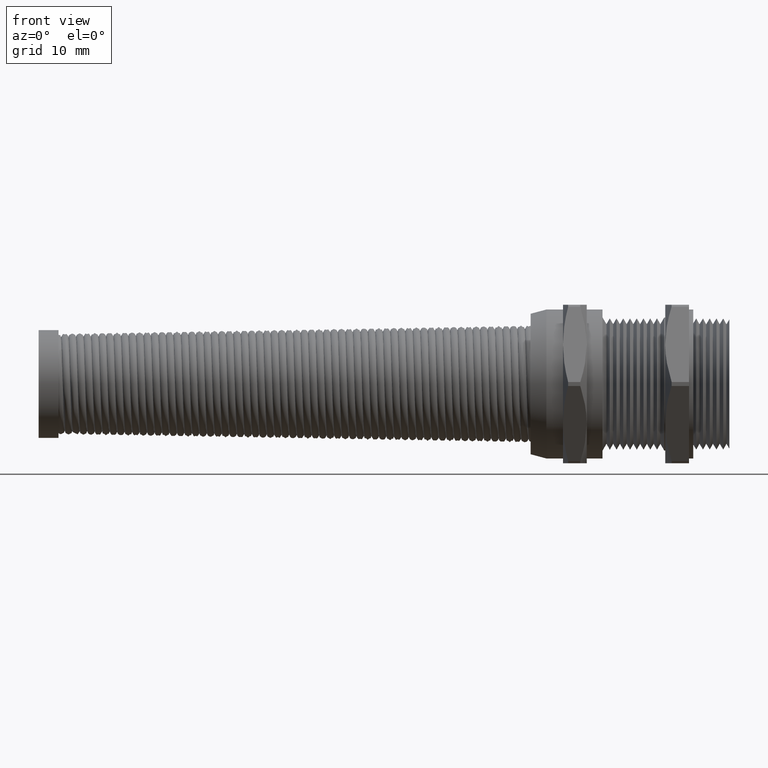
[diagram: clean part render]
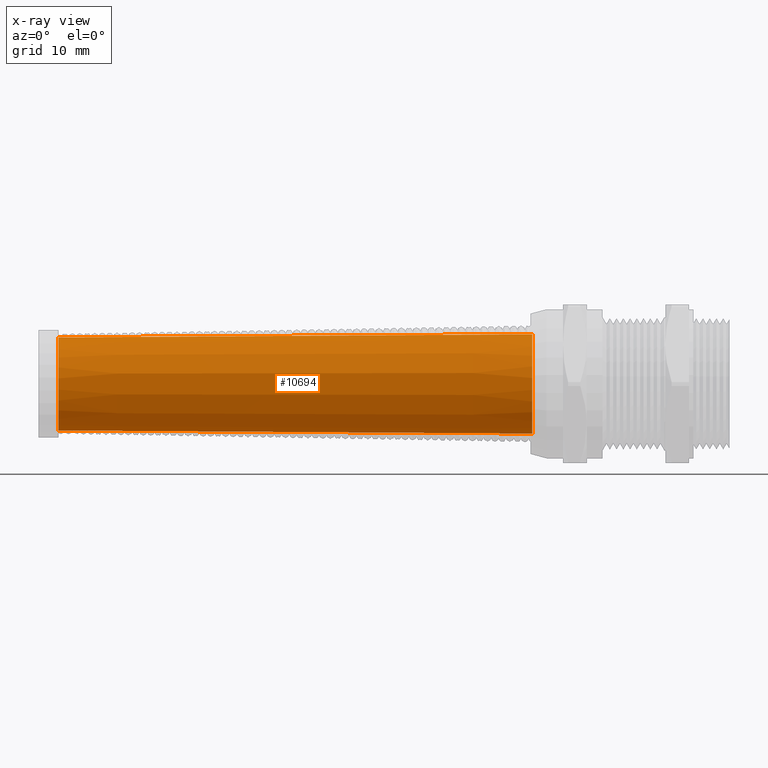
[diagram: x-ray — body ghosted, one internal face saturated and labeled with its STEP entity id]
A machine part, front view, then the same camera in x-ray: the body is ghosted and one INTERNAL B-rep face — a face not visible from any outside direction — is saturated and labeled: STEP entity #10694.
In plain terms, the highlighted conical surface has half-angle 0.38 deg.
Its self-contained STEP definition (entity closure, byte-faithful):
#8403 = DIRECTION ( 'NONE',  ( 0.9999780067029093700, 8.122105606785352400E-019, 0.006632202535817085400 ) ) ;
#8404 = VECTOR ( 'NONE', #8403, 39.37007874015748900 ) ;
#8405 = CARTESIAN_POINT ( 'NONE',  ( -0.5799999999999998500, 3.608911652407331300E-017, 0.2946899999999996700 ) ) ;
#8406 = LINE ( 'NONE', #8405, #8404 ) ;
#8407 = CARTESIAN_POINT ( 'NONE',  ( -3.391909212598425100, 3.494716022961841500E-017, 0.2760404384243686500 ) ) ;
#8408 = CARTESIAN_POINT ( 'NONE',  ( -3.391909212598425100, 0.0000000000000000000, -0.2760404384243686500 ) ) ;
#8415 = CONICAL_SURFACE ( 'NONE', #8479, 0.2946899999999996700, 0.006632251157578404800 ) ;
#8416 = FACE_OUTER_BOUND ( 'NONE', #10695, .T. ) ;
#8476 = DIRECTION ( 'NONE',  ( 0.0000000000000000000, 0.0000000000000000000, -1.000000000000000000 ) ) ;
#8477 = DIRECTION ( 'NONE',  ( 1.000000000000000000, 0.0000000000000000000, 0.0000000000000000000 ) ) ;
#8478 = CARTESIAN_POINT ( 'NONE',  ( -0.5799999999999998500, 0.0000000000000000000, 0.0000000000000000000 ) ) ;
#8479 = AXIS2_PLACEMENT_3D ( 'NONE', #8478, #8477, #8476 ) ;
#8482 = DIRECTION ( 'NONE',  ( 0.0000000000000000000, 0.0000000000000000000, -1.000000000000000000 ) ) ;
#8483 = DIRECTION ( 'NONE',  ( 1.000000000000000000, 0.0000000000000000000, 0.0000000000000000000 ) ) ;
#8484 = CARTESIAN_POINT ( 'NONE',  ( -0.5799999999999998500, 0.0000000000000000000, 0.0000000000000000000 ) ) ;
#8485 = AXIS2_PLACEMENT_3D ( 'NONE', #8484, #8483, #8482 ) ;
#8486 = CIRCLE ( 'NONE', #8485, 0.2946899999999996700 ) ;
#10551 = EDGE_CURVE ( 'NONE', #10661, #10660, #11946, .T. ) ;
#10588 = VERTEX_POINT ( 'NONE', #12002 ) ;
#10612 = VERTEX_POINT ( 'NONE', #19844 ) ;
#10614 = EDGE_CURVE ( 'NONE', #10660, #10612, #19843, .T. ) ;
#10660 = VERTEX_POINT ( 'NONE', #8408 ) ;
#10661 = VERTEX_POINT ( 'NONE', #8407 ) ;
#10663 = EDGE_CURVE ( 'NONE', #10661, #10588, #8406, .T. ) ;
#10694 = ADVANCED_FACE ( 'NONE', ( #8416 ), #8415, .T. ) ;
#10695 = EDGE_LOOP ( 'NONE', ( #10696, #10735, #10726, #10727 ) ) ;
#10696 = ORIENTED_EDGE ( 'NONE', *, *, #10663, .F. ) ;
#10726 = ORIENTED_EDGE ( 'NONE', *, *, #10614, .T. ) ;
#10727 = ORIENTED_EDGE ( 'NONE', *, *, #10740, .F. ) ;
#10735 = ORIENTED_EDGE ( 'NONE', *, *, #10551, .T. ) ;
#10740 = EDGE_CURVE ( 'NONE', #10588, #10612, #8486, .T. ) ;
#11942 = DIRECTION ( 'NONE',  ( 0.0000000000000000000, 0.0000000000000000000, 1.000000000000000000 ) ) ;
#11943 = DIRECTION ( 'NONE',  ( 1.000000000000000000, 0.0000000000000000000, 0.0000000000000000000 ) ) ;
#11944 = CARTESIAN_POINT ( 'NONE',  ( -3.391909212598425100, 0.0000000000000000000, 0.0000000000000000000 ) ) ;
#11945 = AXIS2_PLACEMENT_3D ( 'NONE', #11944, #11943, #11942 ) ;
#11946 = CIRCLE ( 'NONE', #11945, 0.2760404384243686500 ) ;
#12002 = CARTESIAN_POINT ( 'NONE',  ( -0.5799999999999998500, 3.608911652407331300E-017, 0.2946899999999996700 ) ) ;
#19842 = CARTESIAN_POINT ( 'NONE',  ( -0.5799999999999998500, 0.0000000000000000000, -0.2946899999999996700 ) ) ;
#19843 = LINE ( 'NONE', #19842, #19882 ) ;
#19844 = CARTESIAN_POINT ( 'NONE',  ( -0.5799999999999998500, 0.0000000000000000000, -0.2946899999999996700 ) ) ;
#19881 = DIRECTION ( 'NONE',  ( 0.9999780067029093700, 0.0000000000000000000, -0.006632202535817085400 ) ) ;
#19882 = VECTOR ( 'NONE', #19881, 39.37007874015748900 ) ;